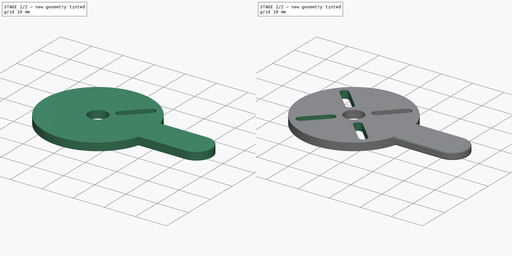
[diagram: build sequence overview — one tinted view per stage of 2, left to right]
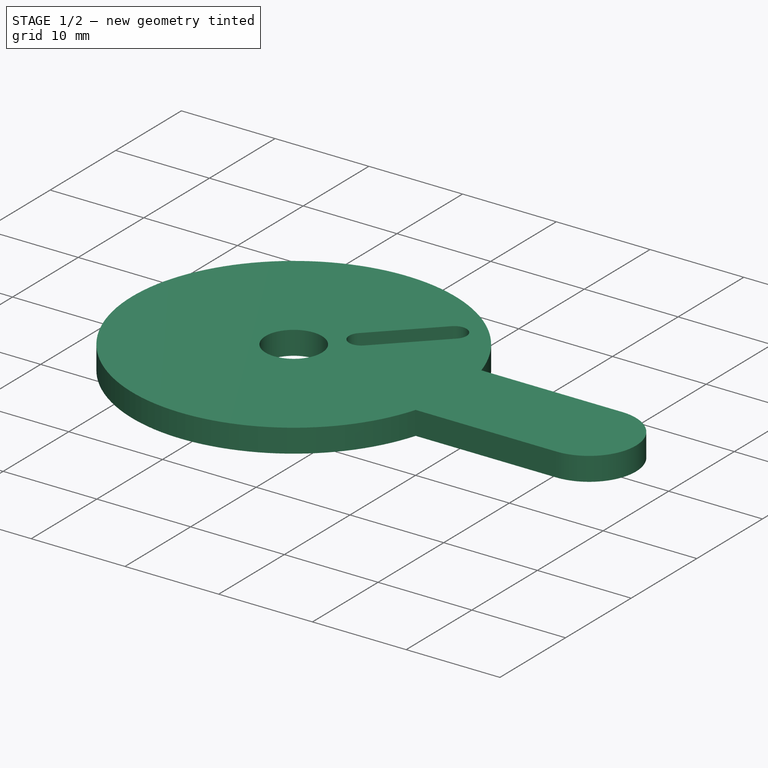
[diagram: stage 1 of 2 — iso view after this stage's code; geometry added in this stage tinted green]
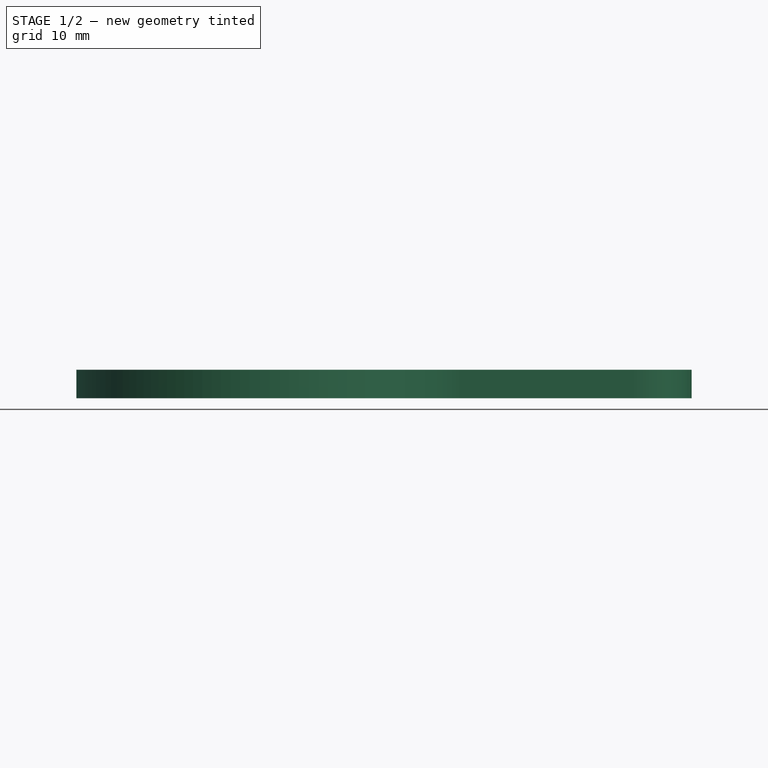
[diagram: stage 1 of 2 — front view after this stage's code; geometry added in this stage tinted green]
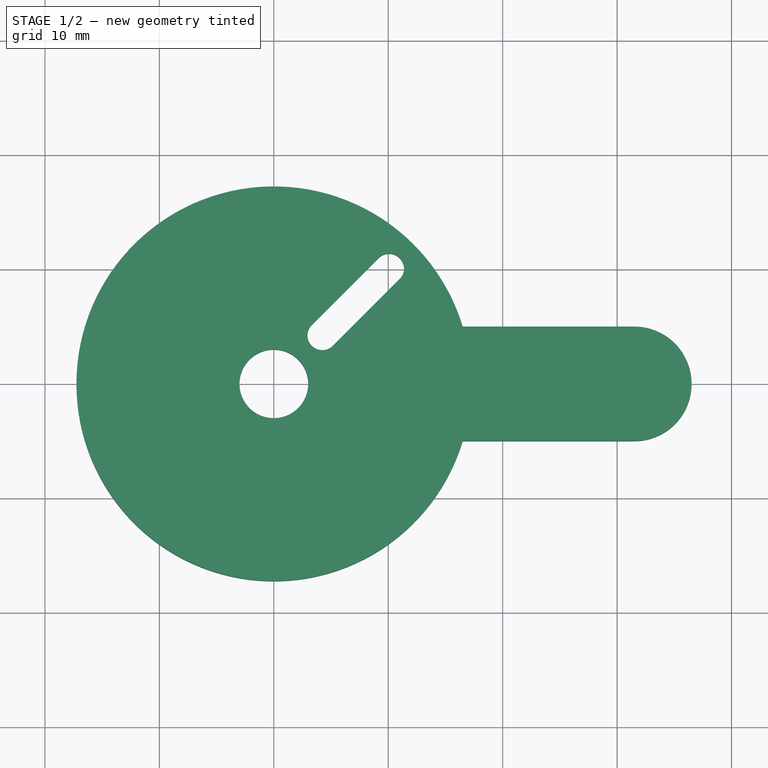
[diagram: stage 1 of 2 — top view after this stage's code; geometry added in this stage tinted green]
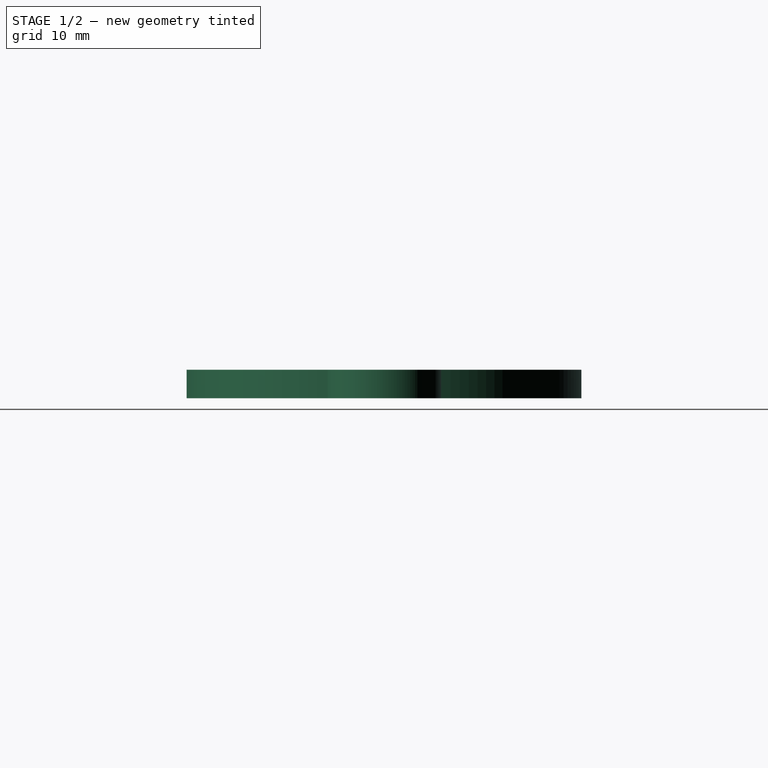
[diagram: stage 1 of 2 — right view after this stage's code; geometry added in this stage tinted green]
FCSTD DOCUMENT  (FreeCAD 0.21R33668 +26 (Git))
Label: knob
License: All rights reserved
LicenseURL: https://en.wikipedia.org/wiki/All_rights_reserved
objects: Sketcher::SketchObject×2, PartDesign::Pad×1, PartDesign::Pocket×1, PartDesign::PolarPattern×1, PartDesign::Fillet×1, PartDesign::Body×1
note: 10 computed .brp shape members not serialized (recipe doc carries the construction recipe); baked Part::Feature solids carry a one-line shape summary decoded from their .brp

FEATURE [Sketcher::SketchObject] Sketch
  FullyConstrained = true
  MapMode = 5
  Support = -> [XY_Plane]
  sketch-geometry (14):
    g0: ArcOfCircle CenterX=0 CenterY=0 CenterZ=0 NormalX=0 NormalY=0 NormalZ=1 AngleXU=0 Radius=17.25 StartAngle=0.294075 EndAngle=5.98911
    g1: LineSegment StartX=-12.1976 StartY=12.1976 StartZ=0 EndX=12.1976 EndY=-12.1976 EndZ=0
    g2: LineSegment StartX=12.1976 StartY=12.1976 StartZ=0 EndX=-12.1976 EndY=-12.1976 EndZ=0
    g3: Circle CenterX=0 CenterY=0 CenterZ=0 NormalX=0 NormalY=0 NormalZ=1 AngleXU=0 Radius=12.5
    g4: Circle CenterX=0 CenterY=0 CenterZ=0 NormalX=0 NormalY=0 NormalZ=1 AngleXU=0 Radius=3
    g5: ArcOfCircle CenterX=4.24264 CenterY=4.24264 CenterZ=0 NormalX=0 NormalY=0 NormalZ=1 AngleXU=0 Radius=1.3 StartAngle=2.35619 EndAngle=5.49779
    g6: ArcOfCircle CenterX=10.0763 CenterY=10.0763 CenterZ=0 NormalX=0 NormalY=0 NormalZ=1 AngleXU=0 Radius=1.3 StartAngle=5.49779 EndAngle=8.63938
    g7: LineSegment StartX=5.16188 StartY=3.3234 StartZ=0 EndX=10.9955 EndY=9.15703 EndZ=0
    g8: LineSegment StartX=9.15703 StartY=10.9955 StartZ=0 EndX=3.3234 EndY=5.16188 EndZ=0
    g9: Circle CenterX=0 CenterY=0 CenterZ=0 NormalX=0 NormalY=0 NormalZ=1 AngleXU=0 Radius=8
    g10: GeomPoint X=2.12132 Y=2.12132 Z=0
    g11: ArcOfCircle CenterX=31.5095 CenterY=0 CenterZ=0 NormalX=0 NormalY=0 NormalZ=1 AngleXU=0 Radius=5 StartAngle=4.71239 EndAngle=7.85398
    g12: LineSegment StartX=16.5095 StartY=-5 StartZ=0 EndX=31.5095 EndY=-5 EndZ=0
    g13: LineSegment StartX=31.5095 StartY=5 StartZ=0 EndX=16.5095 EndY=5 EndZ=0
  constraints (37):
    c: Coincident(g0,g-1)
    c: Diameter(g0) = 34.5
    c: PointOnObject(g1,g0)
    c: PointOnObject(g1,g0)
    c: PointOnObject(g2,g0)
    c: PointOnObject(g2,g0)
    c: Angle(g-1,g2) = 0.785398
    c: PointOnObject(g0,g2)
    c: PointOnObject(g0,g1)
    c: Angle(g2,g1) = 1.5708
    c: Coincident(g3,g0)
    c: Diameter(g3) = 25
    c: Coincident(g4,g0)
    c: Diameter(g4) = 6
    c: Tangent(g5,g7) = -1.5708
    c: Tangent(g7,g6) = -1.5708
    c: Tangent(g6,g8) = -1.5708
    c: Tangent(g8,g5) = -1.5708
    c: Equal(g5,g6)
    c: PointOnObject(g5,g2)
    c: PointOnObject(g6,g2)
    c: Coincident(g9,g0)
    c: Diameter(g9) = 16
    c: Diameter(g6) = 2.6
    c: Distance(g6,g2) = 3
    c: PointOnObject(g10,g2)
    c: PointOnObject(g10,g4)
    c: Distance(g5,g10) = 3
    c: Tangent(g12,g11) = -1.5708
    c: Tangent(g11,g13) = -1.5708
    c: PointOnObject(g11,g-1)
    c: Horizontal(g12)
    c: Radius(g11) = 5
    c: Horizontal(g13)
    c: Coincident(g0,g12)
    c: Coincident(g0,g13)
    c: DistanceX(g13,g13) = 15
FEATURE [PartDesign::Pad] Pad
  Direction = (0,0,1)
  Length = 2.5
  Length2 = 10
  Profile = -> Sketch
  ReferenceAxis = -> Sketch [N_Axis]
  Type = 0
FEATURE [Sketcher::SketchObject] Sketch001
  ExternalGeometry = -> [Pad]
  FullyConstrained = true
  MapMode = 5
  Placement = pos=(0,0,2.5) rot=(0,0,1;0rad)
  Support = -> [Pad]
  sketch-geometry (7):
    g0: LineSegment StartX=-12.1976 StartY=-12.1976 StartZ=0 EndX=12.1976 EndY=12.1976 EndZ=0
    g1: LineSegment StartX=-12.1976 StartY=12.1976 StartZ=0 EndX=12.1976 EndY=-12.1976 EndZ=0
    g2: GeomPoint X=2.12132 Y=2.12132 Z=0
    g3: ArcOfCircle CenterX=4.24264 CenterY=4.24264 CenterZ=0 NormalX=0 NormalY=0 NormalZ=1 AngleXU=0 Radius=1.3 StartAngle=2.35619 EndAngle=5.49779
    g4: ArcOfCircle CenterX=10.0763 CenterY=10.0763 CenterZ=0 NormalX=0 NormalY=0 NormalZ=1 AngleXU=0 Radius=1.3 StartAngle=5.49779 EndAngle=8.63938
    g5: LineSegment StartX=5.16188 StartY=3.3234 StartZ=0 EndX=10.9955 EndY=9.15703 EndZ=0
    g6: LineSegment StartX=9.15703 StartY=10.9955 StartZ=0 EndX=3.3234 EndY=5.16188 EndZ=0
  constraints (20):
    c: PointOnObject(g0,g-3)
    c: PointOnObject(g0,g-3)
    c: PointOnObject(g1,g-3)
    c: PointOnObject(g1,g-3)
    c: PointOnObject(g-4,g0)
    c: PointOnObject(g-4,g1)
    c: Angle(g0,g-1) = 2.35619
    c: Angle(g1,g-1) = 0.785398
    c: PointOnObject(g2,g-4)
    c: PointOnObject(g2,g0)
    c: Tangent(g3,g5) = -1.5708
    c: Tangent(g5,g4) = -1.5708
    c: Tangent(g4,g6) = -1.5708
    c: Tangent(g6,g3) = -1.5708
    c: Equal(g3,g4)
    c: PointOnObject(g3,g0)
    c: PointOnObject(g4,g0)
    c: Diameter(g4) = 2.6
    c: Distance(g4,g0) = 3
    c: Distance(g3,g2) = 3
FEATURE [PartDesign::Pocket] Pocket
  BaseFeature = -> Pad
  Direction = (0,0,-1)
  Length = 5
  Length2 = 5
  Profile = -> Sketch001
  ReferenceAxis = -> Sketch001 [N_Axis]
  Type = 0
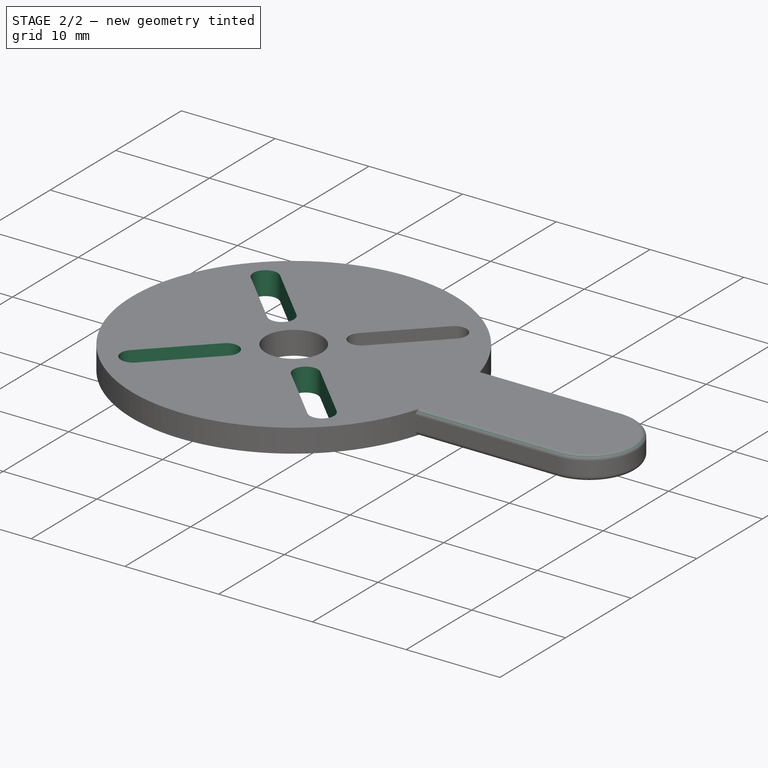
[diagram: stage 2 of 2 — iso view after this stage's code; geometry added in this stage tinted green]
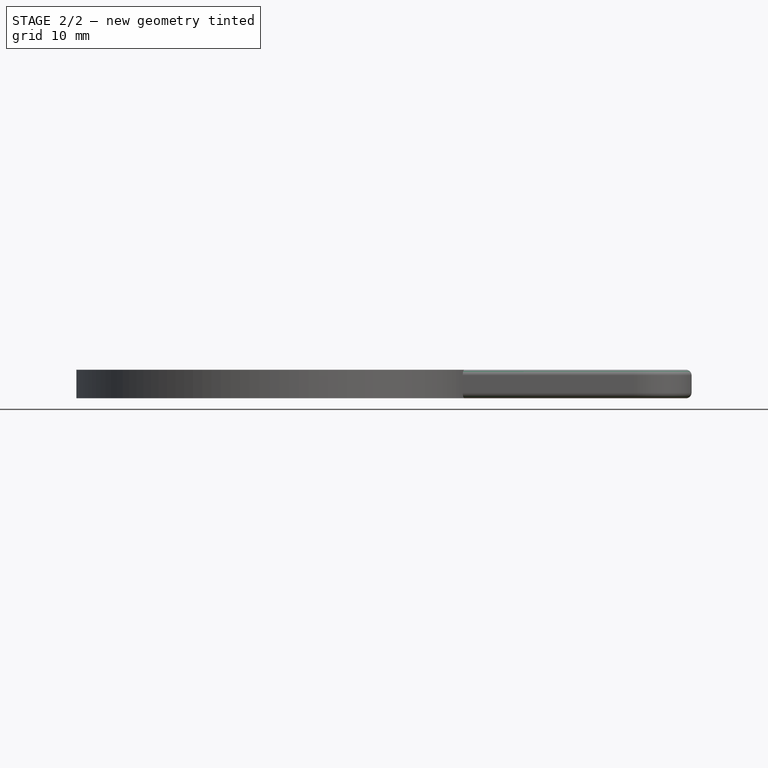
[diagram: stage 2 of 2 — front view after this stage's code; geometry added in this stage tinted green]
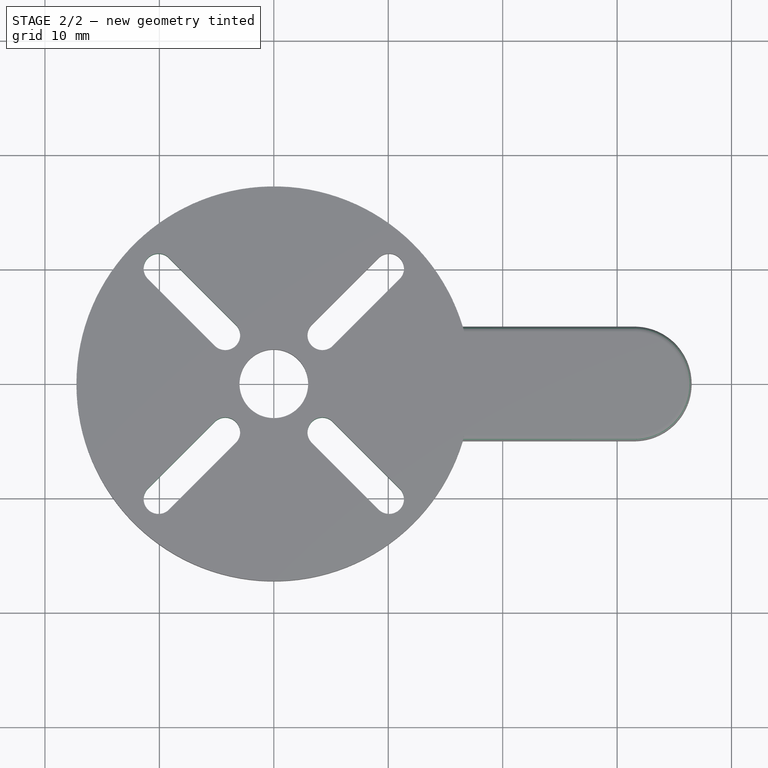
[diagram: stage 2 of 2 — top view after this stage's code; geometry added in this stage tinted green]
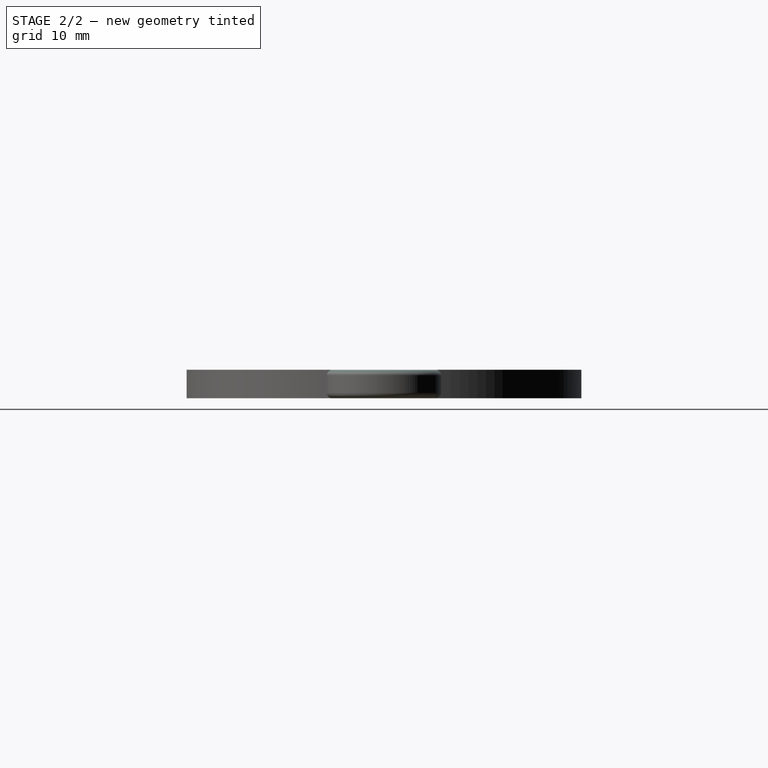
[diagram: stage 2 of 2 — right view after this stage's code; geometry added in this stage tinted green]
FEATURE [PartDesign::PolarPattern] PolarPattern
  Angle = 360
  Axis = -> Sketch001 [N_Axis]
  BaseFeature = -> Pocket
  Occurrences = 4
  Originals = -> [Pocket]
FEATURE [PartDesign::Fillet] Fillet
  Base = -> PolarPattern [Edge7,Edge29,Edge10,Edge9,Edge11,Edge6]
  BaseFeature = -> PolarPattern
  Radius = 0.5
  SupportTransform = false
  UseAllEdges = false
FEATURE [PartDesign::Body] Body
  Group = -> [Sketch,Pad,Sketch001,Pocket,PolarPattern,Fillet]
  Origin = -> Origin
  Tip = -> Fillet
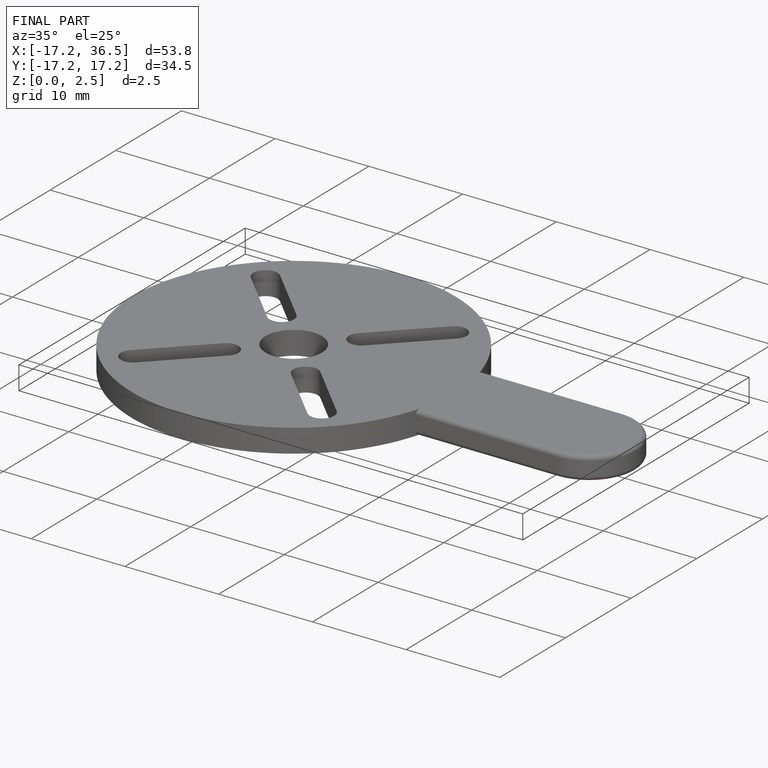
[diagram: finished part — iso view with bounding-box wireframe]
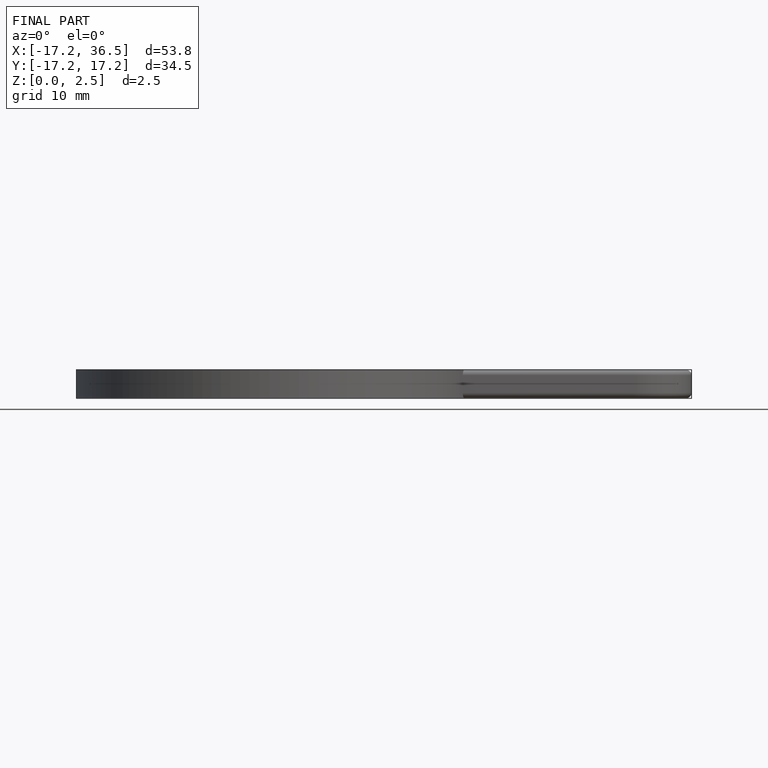
[diagram: finished part — front view with bounding-box wireframe]
